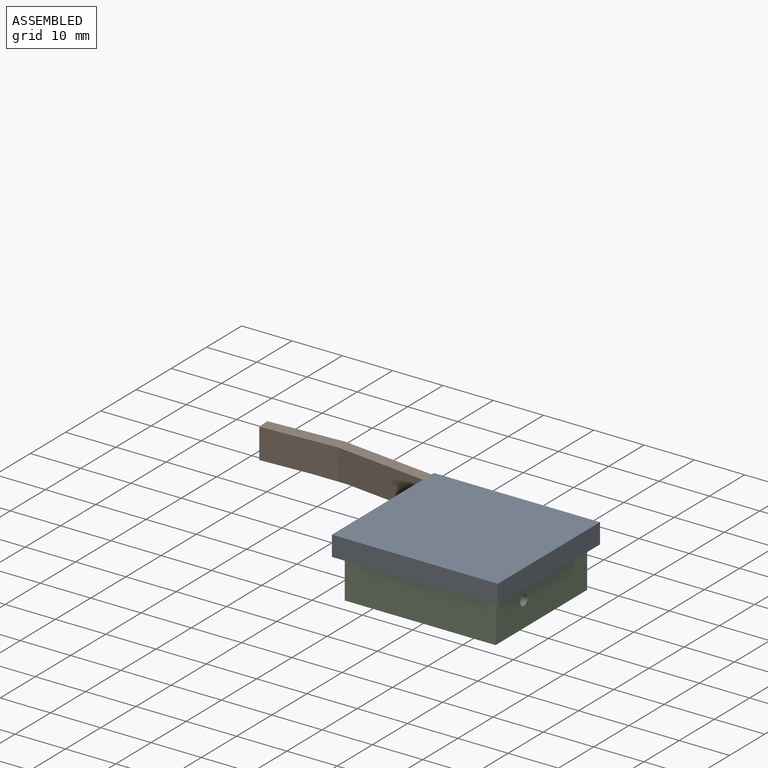
[diagram: assembled view]
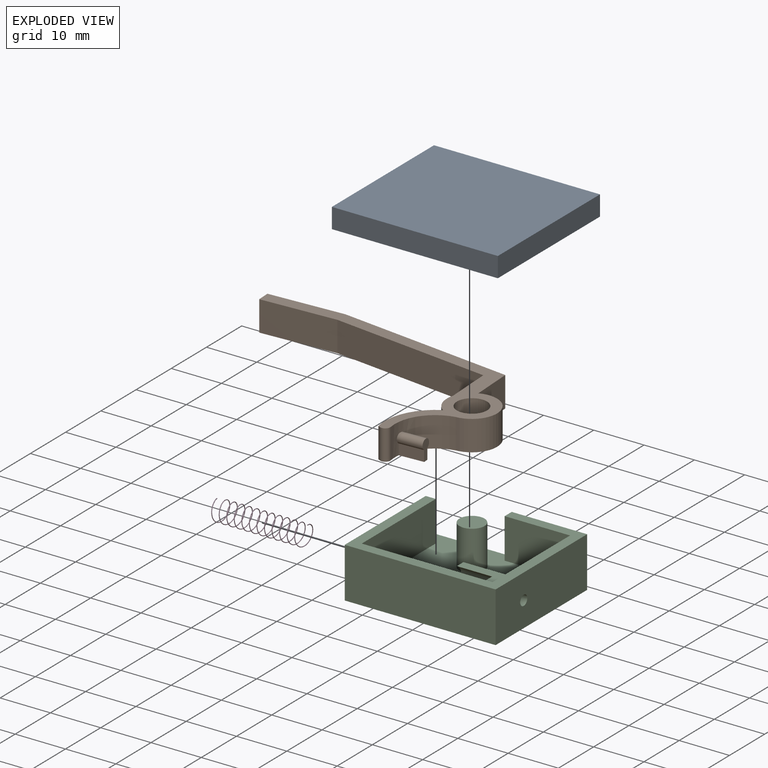
[diagram: exploded view]
GUIDED TOUR — MATED ASSEMBLY (Onshape document eabe0f7f25e42f23c27919de, AutoMate assembly eabe0f7f25e42f23c27919de_7eb34d97d7a0a7efad0af20c_1d72c5f38adafedf2dfd62e8_default)

This assembly has 4 components, labeled P0..P3 below (a component is one placed occurrence of a part; the same part can appear more than once), held together by 4 mates. A mate is a constraint between two components; its type names the relative motion it leaves free:
  PLANAR — leaves sliding in the plane through the listed point (normal = the listed direction) and rotation about that normal free,
  REVOLUTE — leaves rotation about the listed axis free (a hinge),
  SLIDER — leaves translation along the listed axis free.
Axis/direction vectors are unit vectors and 'through' points are millimeter coordinates, both in the assembly's world frame.

MATES
  1. REVOLUTE "Revolute 3": P3 <-> P2, axis (-1.000, 0.000, 0.000) through (9.56, -6.37, 3.00) mm
  2. PLANAR "Planar 1": P2 <-> P0, direction (0.000, 0.000, 1.000) through (-1.44, 4.63, 8.00) mm
  3. SLIDER "Slider 1": P2 <-> P0, axis (0.000, 0.000, 1.000) through (-1.44, 4.63, 8.00) mm
  4. REVOLUTE "Revolute 1": P1 <-> P2, axis (0.000, 0.000, -1.000) through (-1.44, 4.63, 0.00) mm

ASSEMBLY ORDER
  1. P2 — the base component [order heuristic]
  2. P1 — core [order heuristic]
  3. P3 — core [order heuristic]
  4. P0 [order verified]
Order-tag legend:
  [order verified] — this step's position reverses a verified removal order: the component was checked to insert without passing through the ones already placed.
  [order heuristic] — the first 3 components form the assembly's core: parts whose collision-free extraction could not be verified, listed in mate-graph order.

Of the 4 components, 3 carry the full construction recipe — the FeatureScript program that regenerates the part's solid from scratch; the rest are supplied as boundary geometry only.
Each toured component is shown spotlighted twice — in the assembled view, then in the exploded view, where a leader line traces a displaced component back to its assembled socket (saturated green if recipe-attached, orange if geometry-only; every other component desaturated gray) — followed by its recipe or geometry summary and the mates that hold it.
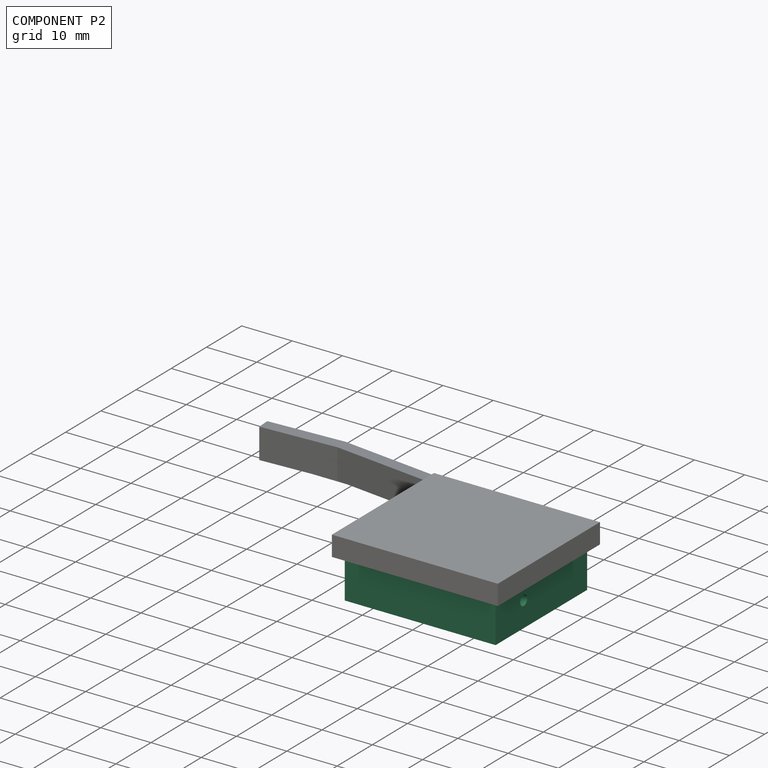
[diagram: component P2 — assembled]
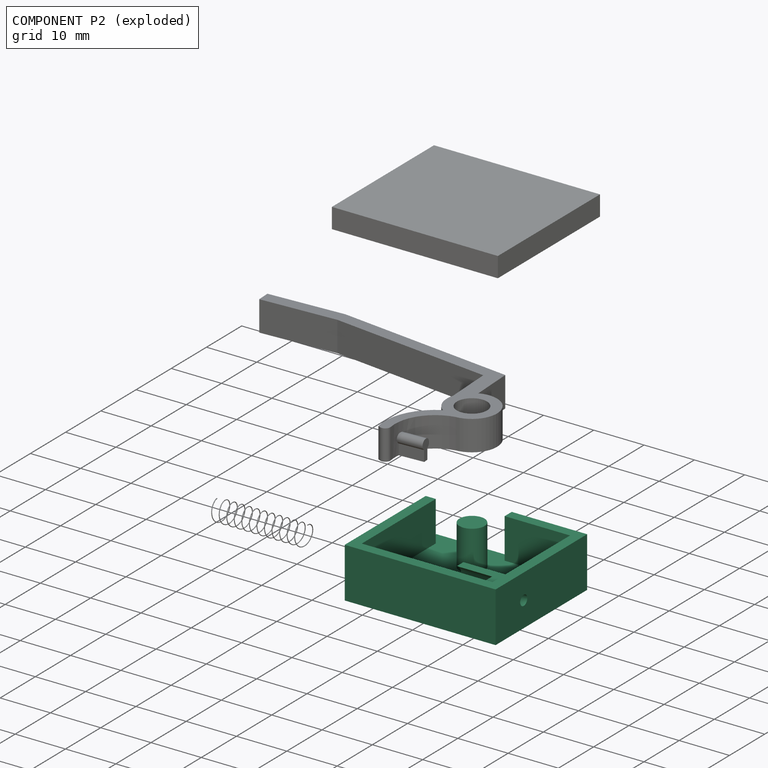
[diagram: component P2 — exploded]
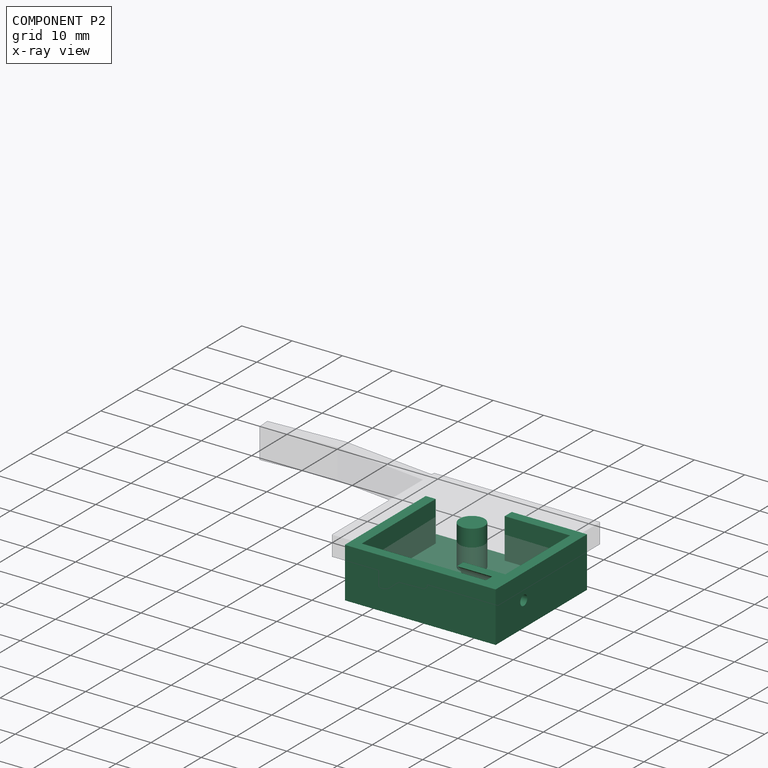
[diagram: component P2 — x-ray view]
COMPONENT P2 — recipe-attached (CADFS 00559264, mesh-verified: the recipe's output STEP matches this component's geometry to below the mesh-comparison resolution (tessellation chordal tolerance ~0.0614 mm)).
Held by: REVOLUTE mate "Revolute 3" to P3; PLANAR mate "Planar 1" to P0; SLIDER mate "Slider 1" to P0; REVOLUTE mate "Revolute 1" to P1.
Construction recipe (FeatureScript — the CAD program that rebuilds this solid; sketch coordinates are in the units given by the * unit suffixes, e.g. mm):

FeatureScript 1511;
import(path : "onshape/std/geometry.fs", version : "1511.0");
import(path : "onshape/std/common.fs", version : "1511.0");
const mm = millimeter;
const VERTEX = EntityType.VERTEX;
const EDGE = EntityType.EDGE;
const FACE = EntityType.FACE;
const BODY = EntityType.BODY;
function v(x, y){return vector(x, y);}
function OD(order){return orderDisambiguation(order);}
function OSD(set){return originalSetDisambiguation(set);}
function TD(topology){return topologyDisambiguation(topology);}
function TDD(query){return trueDependencyDisambiguation(query);}
function sQuery(a, b, c) {return sketchEntityQuery(a, b, c);}

annotation { "Feature Type Name" : "Feature", "Feature Type Description" : "" }
export const myFeature = defineFeature(function(context is Context, id is Id, definition is map)
    precondition{}
    {
        {
            var Q0;
            Q0=qCreatedBy(makeId("Top.planeOp"),FACE);
            var sketch = newSketch(context, id + "F0", { "sketchPlane" : qUnion([Q0])});
            skLineSegment(sketch, "E0.bottom", {"start": v(-15, 13) * mm, "end": v(15, 13) * mm});
            skLineSegment(sketch, "E0.top", {"start": v(-15, -13) * mm, "end": v(15, -13) * mm});
            skLineSegment(sketch, "E0.left", {"start": v(-15, 13) * mm, "end": v(-15, -13) * mm});
            skLineSegment(sketch, "E0.right", {"start": v(15, 13) * mm, "end": v(15, -13) * mm});
            skPoint(sketch, "E0.middle", {"position": v(0, 0) * mm});
            skSolve(sketch);
        }
        {
            var Q0;
            Q0=qSketchRegion(id+"F0",true);
            extrude(context, id + "F1", {"entities" : qUnion([Q0]), "depth" : 2 * mm, "offsetDistance" : 25 * mm});
        }
        {
            var Q0;
            Q0=makeQuery(id+"F1.opExtrude","CAP_FACE",FACE,{"disambiguationData":[OSD([sQuery(id+"F0.wireOp",EDGE,"E0.bottom"),sQuery(id+"F0.wireOp",EDGE,"E0.top"),sQuery(id+"F0.wireOp",EDGE,"E0.left"),sQuery(id+"F0.wireOp",EDGE,"E0.right")])],"isStart":false});
            var sketch = newSketch(context, id + "F2", { "sketchPlane" : qUnion([Q0])});
            skLineSegment(sketch, "E1.top", {"start": v(-15, -13) * mm, "end": v(15, -13) * mm});
            skLineSegment(sketch, "E1.right", {"start": v(15, 13) * mm, "end": v(15, -13) * mm});
            skLineSegment(sketch, "E2.2", {"start": v(-13, -11) * mm, "end": v(13, -11) * mm});
            skLineSegment(sketch, "E2.3", {"start": v(13, 11) * mm, "end": v(13, -11) * mm});
            skLineSegment(sketch, "E3.trimOffspring", {"start": v(-13, 10) * mm, "end": v(-13, -11) * mm});
            skLineSegment(sketch, "E4", {"start": v(-15, 10) * mm, "end": v(-15, -13) * mm});
            skLineSegment(sketch, "E5", {"start": v(0, 13) * mm, "end": v(0, 11) * mm});
            skLineSegment(sketch, "E6.trimOffspring", {"start": v(0, 13) * mm, "end": v(15, 13) * mm});
            skLineSegment(sketch, "E7.trimOffspring", {"start": v(0, 11) * mm, "end": v(13, 11) * mm});
            skLineSegment(sketch, "E8", {"start": v(-15, 10) * mm, "end": v(-13, 10) * mm});
            skSolve(sketch);
        }
        {
            var Q0;
            Q0=qSketchRegion(id+"F2",true);
            extrude(context, id + "F3", {"entities" : qUnion([Q0]), "operationType" : NewBodyOperationType.ADD, "depth" : 8 * mm, "offsetDistance" : 25 * mm});
        }
        {
            var Q0;
            Q0=makeQuery(id+"F1.opExtrude","CAP_FACE",FACE,{"disambiguationData":[OSD([sQuery(id+"F0.wireOp",EDGE,"E0.bottom"),sQuery(id+"F0.wireOp",EDGE,"E0.top"),sQuery(id+"F0.wireOp",EDGE,"E0.left"),sQuery(id+"F0.wireOp",EDGE,"E0.right")])],"isStart":false});
            var sketch = newSketch(context, id + "F4", { "sketchPlane" : qUnion([Q0])});
            skCircle(sketch, "E9", {"center": v(-3, 6) * mm, "radius": 2.5 * mm});
            skLineSegment(sketch, "E10", {"start": v(-3, 11) * mm, "end": v(-3, 0) * mm, "construction": true});
            skSolve(sketch);
        }
        {
            var Q0;
            Q0=qSketchRegion(id+"F4",true);
            var Q1;
            Q1=makeQuery(id+"F3.opExtrude","CAP_FACE",FACE,{"disambiguationData":[OSD([sQuery(id+"F2.wireOp",EDGE,"E1.bottom"),sQuery(id+"F2.wireOp",EDGE,"E1.top"),sQuery(id+"F2.wireOp",EDGE,"E1.right"),sQuery(id+"F2.wireOp",EDGE,"E2.0"),sQuery(id+"F2.wireOp",EDGE,"E2.2"),sQuery(id+"F2.wireOp",EDGE,"E2.3"),sQuery(id+"F2.wireOp",EDGE,"E3.trimOffspring"),sQuery(id+"F2.wireOp",EDGE,"E4"),sQuery(id+"F2.wireOp",EDGE,"QNV54tgF-Zadq-EhpF-mVKo-s3rOeFkCFm37"),sQuery(id+"F2.wireOp",EDGE,"E5"),sQuery(id+"F2.wireOp",EDGE,"E6.trimOffspring"),sQuery(id+"F2.wireOp",EDGE,"E7.trimOffspring")])],"isStart":false});
            extrude(context, id + "F5", {"entities" : qUnion([Q0]), "operationType" : NewBodyOperationType.ADD, "endBound" : BoundingType.UP_TO_SURFACE, "depth" : 12 * mm, "endBoundEntityFace" : qUnion([Q1]), "offsetDistance" : 25 * mm});
        }
        {
            var Q0;
            Q0=makeQuery(id+"F3.opExtrude","SWEPT_FACE",FACE,{"disambiguationData":[OSD([sQuery(id+"F2.wireOp",EDGE,"E2.3")])]});
            var sketch = newSketch(context, id + "F6", { "sketchPlane" : qUnion([Q0])});
            skLineSegment(sketch, "E11.top", {"start": v(1.5, 5) * mm, "end": v(8.5, 5) * mm, "construction": true});
            skPoint(sketch, "E12.centerSnap0", {"position": v(5, 5) * mm});
            skArc(sketch, "E13", {"start": v(8.5, 5) * mm, "mid": v(8.34, 6.06) * mm, "end": v(7.86, 7.02) * mm});
            skLineSegment(sketch, "E14", {"start": v(8.5, 5) * mm, "end": v(8.5, 0) * mm});
            skLineSegment(sketch, "E15", {"start": v(1.5, 5) * mm, "end": v(1.5, 0) * mm});
            skLineSegment(sketch, "E16", {"start": v(8.5, 0) * mm, "end": v(1.5, 0) * mm});
            skArc(sketch, "E17", {"start": v(4, 7.02) * mm, "mid": v(5, 2.75) * mm, "end": v(6, 7.02) * mm});
            skLineSegment(sketch, "E18", {"start": v(7.86, 7.02) * mm, "end": v(6, 7.02) * mm});
            skLineSegment(sketch, "E19.trimOffspring", {"start": v(4, 7.02) * mm, "end": v(2.14, 7.02) * mm});
            skArc(sketch, "E20.trimOffspring", {"start": v(2.14, 7.02) * mm, "mid": v(1.66, 6.06) * mm, "end": v(1.5, 5) * mm});
            skSolve(sketch);
        }
        {
            var Q0;
            Q0=qSketchRegion(id+"F6",true);
            extrude(context, id + "F7", {"entities" : qUnion([Q0]), "operationType" : NewBodyOperationType.ADD, "depth" : 12 * mm, "offsetDistance" : 25 * mm});
        }
        {
            var Q0;
            {var subQ1=sQuery(id+"F2.wireOp",EDGE,"E2.3");var subQ2=sQuery(id+"F2.wireOp",EDGE,"E2.2");Q0=makeQuery(id+"F7.boolean.opBoolean","SPLIT",FACE,{"disambiguationData":[TD([makeQuery(id+"F3.opExtrude","SWEPT_FACE",FACE,{"disambiguationData":[OSD([subQ2])]})])],"derivedFrom":makeQuery(id+"F3.opExtrude","SWEPT_FACE",FACE,{"disambiguationData":[OSD([subQ1])]})});}
            var sketch = newSketch(context, id + "F8", { "sketchPlane" : qUnion([Q0])});
            skLineSegment(sketch, "E21", {"start": v(8.5, 2) * mm, "end": v(8.5, 5) * mm});
            skLineSegment(sketch, "E22", {"start": v(1.5, 2) * mm, "end": v(8.5, 2) * mm});
            skLineSegment(sketch, "E23", {"start": v(8.5, 5) * mm, "end": v(8.5, 5) * mm});
            skLineSegment(sketch, "E24", {"start": v(1.5, 2) * mm, "end": v(1.5, 5) * mm});
            skLineSegment(sketch, "E25", {"start": v(7.86, 7.02) * mm, "end": v(2.14, 7.02) * mm});
            skArc(sketch, "E26", {"start": v(8.5, 5) * mm, "mid": v(8.34, 6.06) * mm, "end": v(7.86, 7.02) * mm});
            skArc(sketch, "E27", {"start": v(2.14, 7.02) * mm, "mid": v(1.66, 6.06) * mm, "end": v(1.5, 5) * mm});
            skSolve(sketch);
        }
        {
            var Q0;
            Q0 = qSketchRegion(id + "F8", true);
            extrude(context, id + "F9", {"entities" : qUnion([Q0]), "operationType" : NewBodyOperationType.ADD, "depth" : 5 * mm, "offsetDistance" : 25 * mm});
        }
        {
            var Q0;
            Q0=makeQuery(id+"F3.boolean.opBoolean","MERGE",FACE,{"derivedFrom":[makeQuery(id+"F1.opExtrude","SWEPT_FACE",FACE,{"disambiguationData":[OSD([sQuery(id+"F0.wireOp",EDGE,"E0.right")])]}),makeQuery(id+"F3.opExtrude","SWEPT_FACE",FACE,{"disambiguationData":[OSD([sQuery(id+"F2.wireOp",EDGE,"E1.right")])]})]});
            var sketch = newSketch(context, id + "F10", { "sketchPlane" : qUnion([Q0])});
            skCircle(sketch, "E28", {"center": v(-5, 5) * mm, "radius": 1 * mm});
            skSolve(sketch);
        }
        {
            var Q0;
            Q0 = qSketchRegion(id + "F10", true);
            extrude(context, id + "F11", {"entities" : qUnion([Q0]), "operationType" : NewBodyOperationType.REMOVE, "endBound" : BoundingType.THROUGH_ALL, "oppositeDirection" : true, "depth" : 25 * mm, "offsetDistance" : 25 * mm});
        }
    });
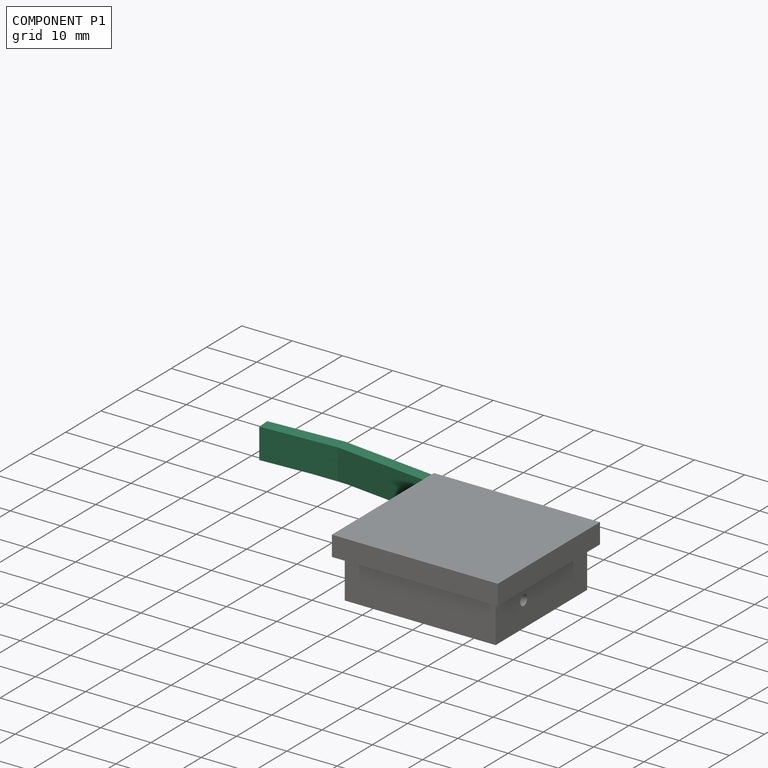
[diagram: component P1 — assembled]
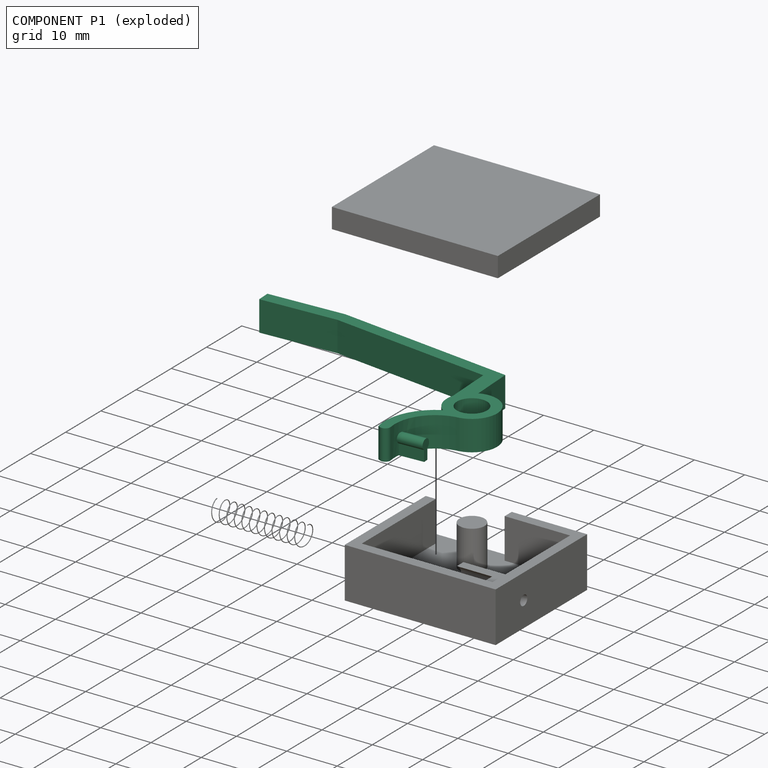
[diagram: component P1 — exploded]
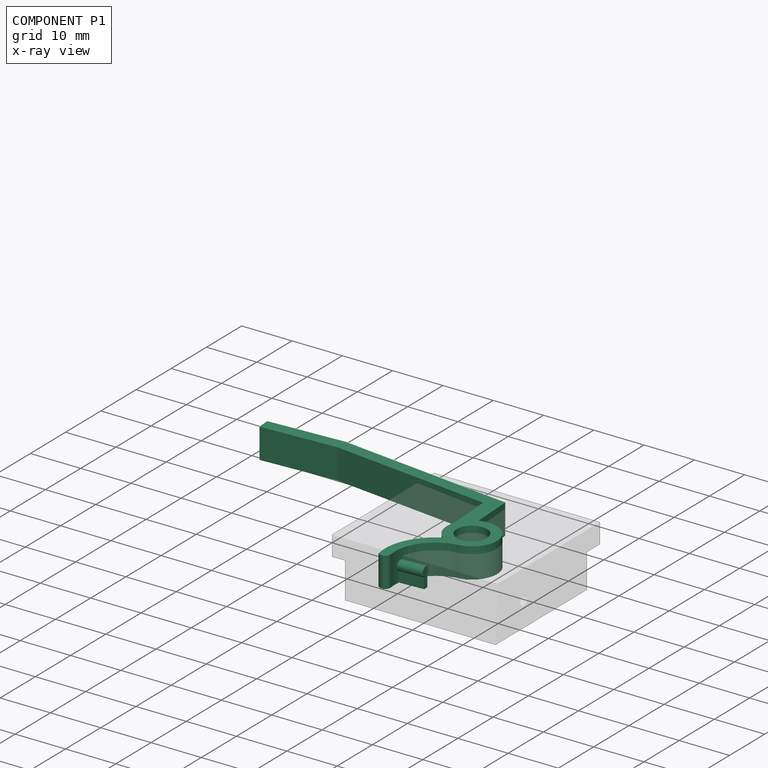
[diagram: component P1 — x-ray view]
COMPONENT P1 — recipe-attached (CADFS 00559263, mesh-verified: the recipe's output STEP matches this component's geometry to below the mesh-comparison resolution (tessellation chordal tolerance ~0.0989 mm)).
Held by: REVOLUTE mate "Revolute 1" to P2.
Construction recipe (FeatureScript — the CAD program that rebuilds this solid; sketch coordinates are in the units given by the * unit suffixes, e.g. mm):

FeatureScript 1511;
import(path : "onshape/std/geometry.fs", version : "1511.0");
import(path : "onshape/std/common.fs", version : "1511.0");
const mm = millimeter;
const VERTEX = EntityType.VERTEX;
const EDGE = EntityType.EDGE;
const FACE = EntityType.FACE;
const BODY = EntityType.BODY;
function v(x, y){return vector(x, y);}
function OD(order){return orderDisambiguation(order);}
function OSD(set){return originalSetDisambiguation(set);}
function TD(topology){return topologyDisambiguation(topology);}
function TDD(query){return trueDependencyDisambiguation(query);}
function sQuery(a, b, c) {return sketchEntityQuery(a, b, c);}

annotation { "Feature Type Name" : "Feature", "Feature Type Description" : "" }
export const myFeature = defineFeature(function(context is Context, id is Id, definition is map)
    precondition{}
    {
        {
            var Q0;
            Q0=qCreatedBy(makeId("Top.planeOp"),FACE);
            var sketch = newSketch(context, id + "F0", { "sketchPlane" : qUnion([Q0])});
            skCircle(sketch, "E0", {"center": v(0, 0) * mm, "radius": 3 * mm});
            skArc(sketch, "E1", {"start": v(0, -5) * mm, "mid": v(1.7, 4.7) * mm, "end": v(-3.18, -3.85) * mm});
            skArc(sketch, "E2", {"start": v(-3.18, -3.85) * mm, "mid": v(-7.84, -8.25) * mm, "end": v(-8.87, -14.57) * mm});
            skArc(sketch, "E3", {"start": v(0, -5) * mm, "mid": v(-5.29, -8) * mm, "end": v(-6.95, -13.84) * mm});
            skLineSegment(sketch, "E4", {"start": v(-9, 0) * mm, "end": v(-9, -12.1) * mm, "construction": true});
            skLineSegment(sketch, "E5", {"start": v(-8.52, -16) * mm, "end": v(-6.4, -16) * mm, "construction": true});
            skLineSegment(sketch, "E6", {"start": v(-1.71, 4.7) * mm, "end": v(-1.71, 13) * mm});
            skLineSegment(sketch, "E7", {"start": v(-1.71, 13) * mm, "end": v(-36.18, 19.08) * mm});
            skLineSegment(sketch, "E8", {"start": v(-36.18, 19.08) * mm, "end": v(-51.18, 19.08) * mm});
            skLineSegment(sketch, "E9", {"start": v(-51.18, 19.08) * mm, "end": v(-51.18, 16.58) * mm});
            skLineSegment(sketch, "E10", {"start": v(-51.18, 16.58) * mm, "end": v(-36.18, 16.58) * mm});
            skLineSegment(sketch, "E11", {"start": v(-36.18, 16.58) * mm, "end": v(-4.71, 11.03) * mm});
            skLineSegment(sketch, "E12", {"start": v(-4.71, 11.03) * mm, "end": v(-4.71, 1.68) * mm});
            skLineSegment(sketch, "E13", {"start": v(-8.44, -14.82) * mm, "end": v(-8.87, -14.57) * mm});
            skPoint(sketch, "E14.visualSharp", {"position": v(-6.4, -16) * mm});
            skArc(sketch, "E14.filletArc", {"start": v(-8.44, -14.82) * mm, "mid": v(-7.4, -14.79) * mm, "end": v(-6.95, -13.84) * mm});
            skLineSegment(sketch, "E15", {"start": v(0, 0) * mm, "end": v(-1.71, 4.7) * mm, "construction": true});
            skLineSegment(sketch, "E16", {"start": v(0, 0) * mm, "end": v(-19.76, 0) * mm, "construction": true});
            skSolve(sketch);
        }
        {
            var Q0;
            Q0 = qSketchRegion(id + "F0", true);
            extrude(context, id + "F1", {"entities" : qUnion([Q0]), "depth" : 6 * mm, "offsetDistance" : 25 * mm});
        }
        {
            var Q0;
            Q0=qCreatedBy(makeId("Right.planeOp"),FACE);
            cPlane(context, id + "F2", {"entities" : qUnion([Q0]), "cplaneType" : CPlaneType.OFFSET, "offset" : 7 * mm, "oppositeDirection" : true, "width" : 150 * mm, "height" : 150 * mm});
        }
        {
            var Q0;
            Q0=qCreatedBy(id+"F2.planeOp",FACE);
            var sketch = newSketch(context, id + "F3", { "sketchPlane" : qUnion([Q0])});
            skArc(sketch, "E17", {"start": v(-10.5, 2.13) * mm, "mid": v(-11, 4) * mm, "end": v(-11.5, 2.13) * mm});
            skLineSegment(sketch, "E18.bottom", {"start": v(-11.5, 0) * mm, "end": v(-10.5, 0) * mm});
            skLineSegment(sketch, "E18.left", {"start": v(-11.5, 0) * mm, "end": v(-11.5, 2.13) * mm});
            skLineSegment(sketch, "E18.right", {"start": v(-10.5, 0) * mm, "end": v(-10.5, 2.13) * mm});
            skLineSegment(sketch, "E19", {"start": v(-11, 3) * mm, "end": v(-11, 0) * mm, "construction": true});
            skSolve(sketch);
        }
        {
            var Q0;
            Q0 = qSketchRegion(id + "F3", true);
            extrude(context, id + "F4", {"entities" : qUnion([Q0]), "operationType" : NewBodyOperationType.ADD, "depth" : 5 * mm, "offsetDistance" : 25 * mm});
        }
    });
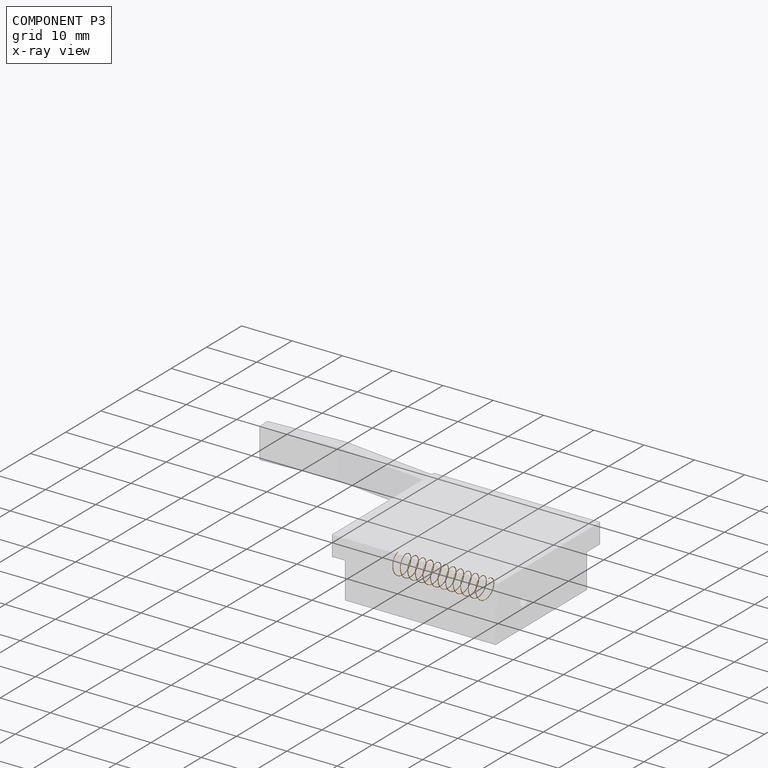
[diagram: component P3 — x-ray view]
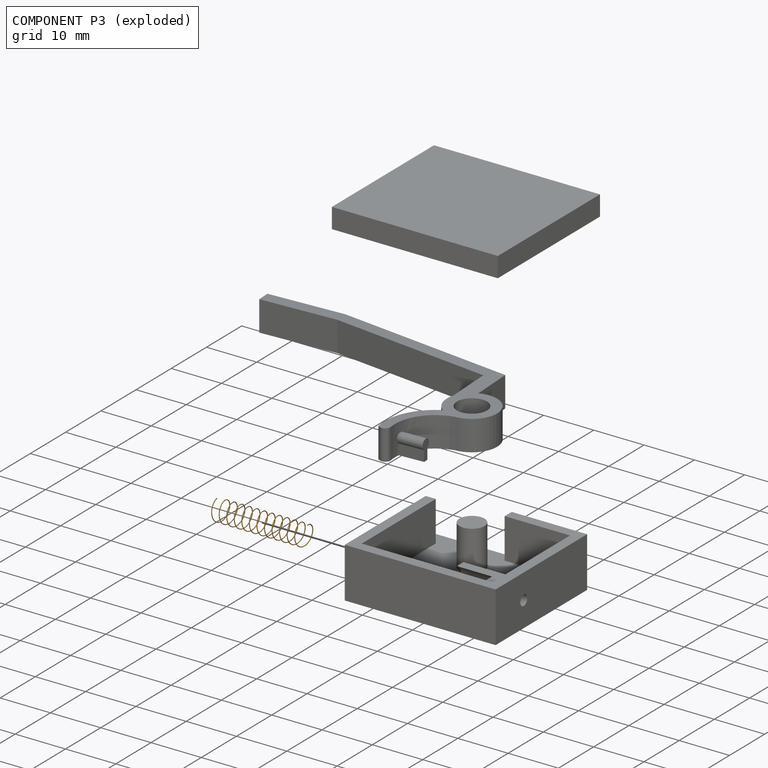
[diagram: component P3 — exploded]
COMPONENT P3 — geometry summary (no construction recipe available for this part):
  bounding box: 18.3 x 4.8 x 4.2 mm
  B-rep topology: 1 solid, 3 faces, 6 edges
  volume: 3 mm^3 (1% of its bounding box)
  symmetry: 2-fold rotationally symmetric about the x axis
Held by: REVOLUTE mate "Revolute 3" to P2.
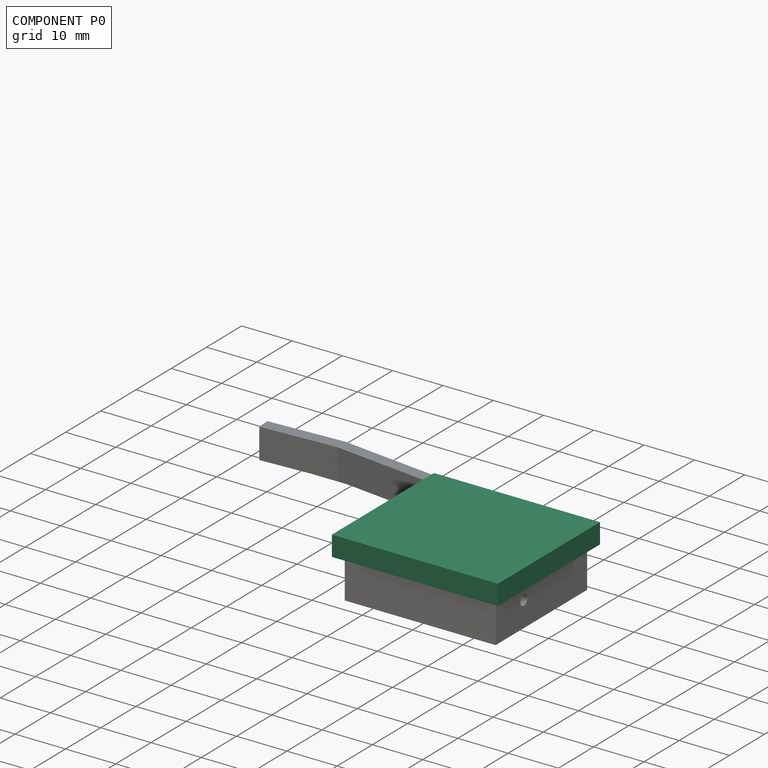
[diagram: component P0 — assembled]
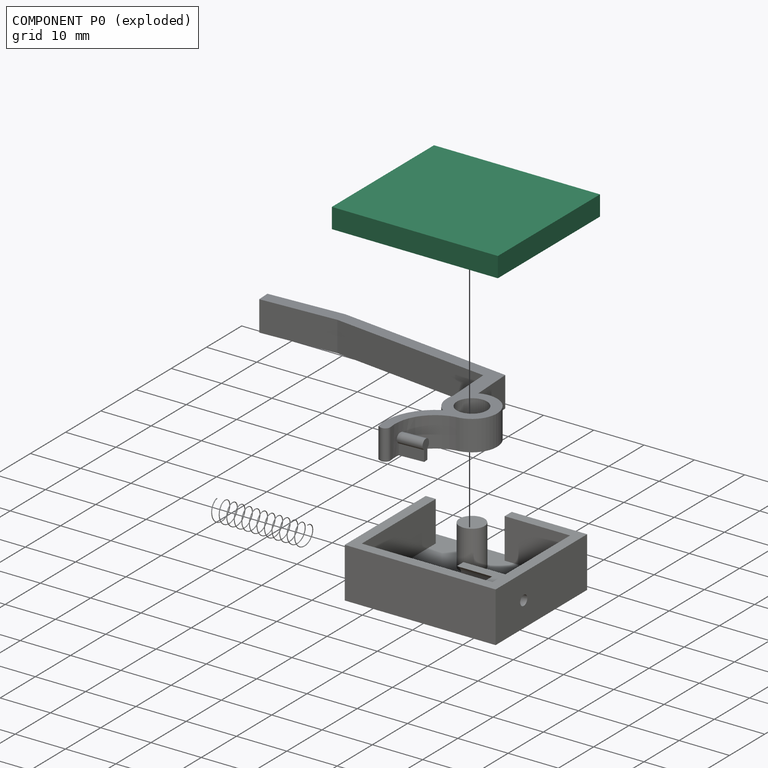
[diagram: component P0 — exploded]
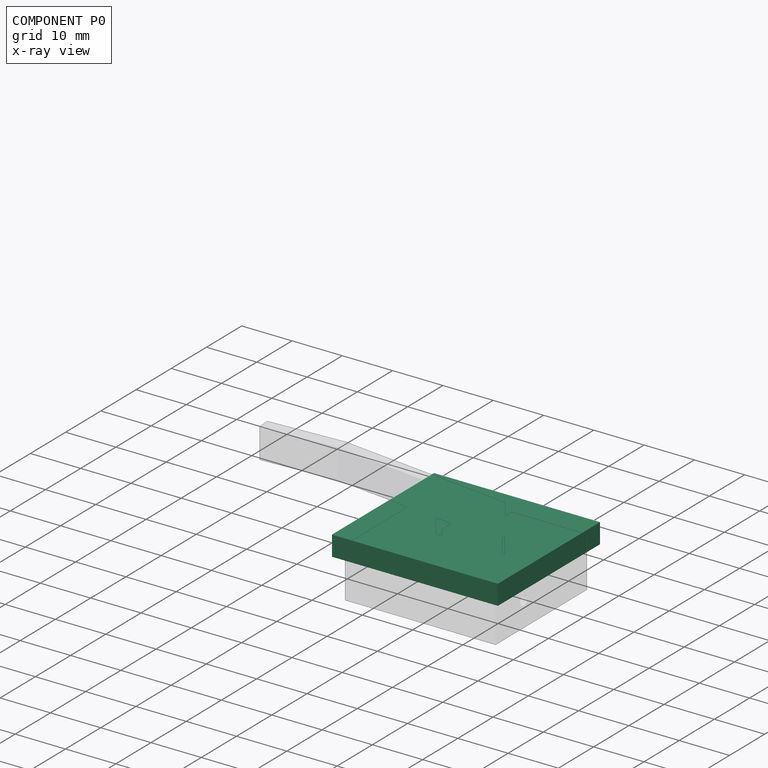
[diagram: component P0 — x-ray view]
COMPONENT P0 — recipe-attached (CADFS 00559265, mesh-verified: the recipe's output STEP matches this component's geometry to below the mesh-comparison resolution (tessellation chordal tolerance ~0.0662 mm)).
Held by: PLANAR mate "Planar 1" to P2; SLIDER mate "Slider 1" to P2.
Construction recipe (FeatureScript — the CAD program that rebuilds this solid; sketch coordinates are in the units given by the * unit suffixes, e.g. mm):

FeatureScript 1511;
import(path : "onshape/std/geometry.fs", version : "1511.0");
import(path : "onshape/std/common.fs", version : "1511.0");
const mm = millimeter;
const VERTEX = EntityType.VERTEX;
const EDGE = EntityType.EDGE;
const FACE = EntityType.FACE;
const BODY = EntityType.BODY;
function v(x, y){return vector(x, y);}
function OD(order){return orderDisambiguation(order);}
function OSD(set){return originalSetDisambiguation(set);}
function TD(topology){return topologyDisambiguation(topology);}
function TDD(query){return trueDependencyDisambiguation(query);}
function sQuery(a, b, c) {return sketchEntityQuery(a, b, c);}

annotation { "Feature Type Name" : "Feature", "Feature Type Description" : "" }
export const myFeature = defineFeature(function(context is Context, id is Id, definition is map)
    precondition{}
    {
        {
            var Q0;
            Q0=qCreatedBy(makeId("Top.planeOp"),FACE);
            var sketch = newSketch(context, id + "F0", { "sketchPlane" : qUnion([Q0])});
            skLineSegment(sketch, "E0.bottom", {"start": v(-16.5, 14.5) * mm, "end": v(16.5, 14.5) * mm});
            skLineSegment(sketch, "E0.top", {"start": v(-16.5, -14.5) * mm, "end": v(16.5, -14.5) * mm});
            skLineSegment(sketch, "E0.left", {"start": v(-16.5, 14.5) * mm, "end": v(-16.5, -14.5) * mm});
            skLineSegment(sketch, "E0.right", {"start": v(16.5, 14.5) * mm, "end": v(16.5, -14.5) * mm});
            skPoint(sketch, "E0.middle", {"position": v(0, 0) * mm});
            skSolve(sketch);
        }
        {
            var Q0;
            Q0 = qSketchRegion(id + "F0", true);
            extrude(context, id + "F1", {"entities" : qUnion([Q0]), "depth" : 2 * mm, "offsetDistance" : 25 * mm});
        }
        {
            var Q0;
            Q0=makeQuery(id+"F1.opExtrude","CAP_FACE",FACE,{"disambiguationData":[OSD([sQuery(id+"F0.wireOp",EDGE,"E0.bottom"),sQuery(id+"F0.wireOp",EDGE,"E0.top"),sQuery(id+"F0.wireOp",EDGE,"E0.left"),sQuery(id+"F0.wireOp",EDGE,"E0.right")])],"isStart":false});
            var sketch = newSketch(context, id + "F2", { "sketchPlane" : qUnion([Q0])});
            skLineSegment(sketch, "E1.bottom", {"start": v(-16.5, 14.5) * mm, "end": v(16.5, 14.5) * mm});
            skLineSegment(sketch, "E1.top", {"start": v(-16.5, -14.5) * mm, "end": v(16.5, -14.5) * mm});
            skLineSegment(sketch, "E1.left", {"start": v(-16.5, 14.5) * mm, "end": v(-16.5, -14.5) * mm});
            skLineSegment(sketch, "E1.right", {"start": v(16.5, 14.5) * mm, "end": v(16.5, -14.5) * mm});
            skLineSegment(sketch, "E2.bottom", {"start": v(-15.5, 13.5) * mm, "end": v(15.5, 13.5) * mm});
            skLineSegment(sketch, "E2.top", {"start": v(-15.5, -13.5) * mm, "end": v(15.5, -13.5) * mm});
            skLineSegment(sketch, "E2.left", {"start": v(-15.5, 13.5) * mm, "end": v(-15.5, -13.5) * mm});
            skLineSegment(sketch, "E2.right", {"start": v(15.5, 13.5) * mm, "end": v(15.5, -13.5) * mm});
            skLineSegment(sketch, "E3", {"start": v(-15.5, 13.5) * mm, "end": v(15.5, -13.5) * mm, "construction": true});
            skSolve(sketch);
        }
        {
            var Q0;
            Q0 = qSketchRegion(id + "F2", true);
            extrude(context, id + "F3", {"entities" : qUnion([Q0]), "operationType" : NewBodyOperationType.ADD, "depth" : 2 * mm, "offsetDistance" : 25 * mm});
        }
        {
            var Q0;
            Q0=makeQuery(id+"F1.opExtrude","CAP_FACE",FACE,{"disambiguationData":[OSD([sQuery(id+"F0.wireOp",EDGE,"E0.bottom"),sQuery(id+"F0.wireOp",EDGE,"E0.top"),sQuery(id+"F0.wireOp",EDGE,"E0.left"),sQuery(id+"F0.wireOp",EDGE,"E0.right")])],"isStart":false});
            var sketch = newSketch(context, id + "F4", { "sketchPlane" : qUnion([Q0])});
            skLineSegment(sketch, "E4.bottom", {"start": v(-11.5, 9.5) * mm, "end": v(11.5, 9.5) * mm});
            skLineSegment(sketch, "E4.top", {"start": v(-11.5, -9.5) * mm, "end": v(11.5, -9.5) * mm});
            skLineSegment(sketch, "E4.left", {"start": v(-11.5, 9.5) * mm, "end": v(-11.5, -9.5) * mm});
            skLineSegment(sketch, "E4.right", {"start": v(11.5, 9.5) * mm, "end": v(11.5, -9.5) * mm});
            skPoint(sketch, "E4.middle", {"position": v(0, 0) * mm});
            skLineSegment(sketch, "E5.bottom", {"start": v(-12.5, 10.5) * mm, "end": v(12.5, 10.5) * mm});
            skLineSegment(sketch, "E5.top", {"start": v(-12.5, -10.5) * mm, "end": v(12.5, -10.5) * mm});
            skLineSegment(sketch, "E5.left", {"start": v(-12.5, 10.5) * mm, "end": v(-12.5, -10.5) * mm});
            skLineSegment(sketch, "E5.right", {"start": v(12.5, 10.5) * mm, "end": v(12.5, -10.5) * mm});
            skSolve(sketch);
        }
        {
            var Q0;
            Q0 = qSketchRegion(id + "F4", true);
            extrude(context, id + "F5", {"entities" : qUnion([Q0]), "operationType" : NewBodyOperationType.ADD, "depth" : 2 * mm, "offsetDistance" : 25 * mm});
        }
        {
            var Q0;
            Q0=makeQuery(id+"F5.boolean.opBoolean","SPLIT",FACE,{"disambiguationData":[TD([makeQuery(id+"F5.opExtrude","SWEPT_FACE",FACE,{"disambiguationData":[OSD([sQuery(id+"F4.wireOp",EDGE,"E5.bottom")])]})])],"derivedFrom":makeQuery(id+"F1.opExtrude","CAP_FACE",FACE,{"disambiguationData":[OSD([sQuery(id+"F0.wireOp",EDGE,"E0.bottom"),sQuery(id+"F0.wireOp",EDGE,"E0.top"),sQuery(id+"F0.wireOp",EDGE,"E0.left"),sQuery(id+"F0.wireOp",EDGE,"E0.right")])],"isStart":false})});
            var sketch = newSketch(context, id + "F6", { "sketchPlane" : qUnion([Q0])});
            skCircle(sketch, "E6", {"center": v(-3, -6) * mm, "radius": 4.5 * mm});
            skCircle(sketch, "E7", {"center": v(-3, -6) * mm, "radius": 3.5 * mm});
            skSolve(sketch);
        }
        {
            var Q0;
            Q0 = qSketchRegion(id + "F6", true);
            extrude(context, id + "F7", {"entities" : qUnion([Q0]), "operationType" : NewBodyOperationType.ADD, "depth" : 2 * mm, "offsetDistance" : 25 * mm});
        }
    });
PROVENANCE & LICENSES
Assembly (occurrences, transforms, mates, per-part STEP geometry): AutoMate dataset, Zenodo record 7776208, CC0.
Construction recipes: CADFS (HuggingFace VladPyatov/CADFS, CC-BY-4.0, layered over the ABC dataset), FeatureScript reconstruction programs keyed by ABC model id.
Join: ABC meta listings map ABC model id -> Onshape documentId; within a shared document, parts are matched by geometric signature (bounding-box dims + volume at 0.1% relative tolerance, exact B-rep face/solid counts).
Verification: 3 of this assembly's 4 components carry a recipe attachment, and every attachment is mesh-verified: the CADFS STEP and the AutoMate member STEP were compared as meshes in their shared local frame (symmetric sampled-point-to-mesh distance); worst across the 3 attachments: below the mesh-comparison resolution (tessellation chordal tolerance ~0.0989 mm) on a 66 mm part.
Renders: orthographic iso camera (az 35 / el 25); the floor grid conveys scale (grid pitch printed in each image; no ruler). In the exploded view each component is displaced by its stored offset vector: the offsets alone carry the explosion direction (mate normal/axis signs are not orientation cues and do not encode it), and separation distances are assigned per mate-chain, not proportionally to assembly-order depth.
